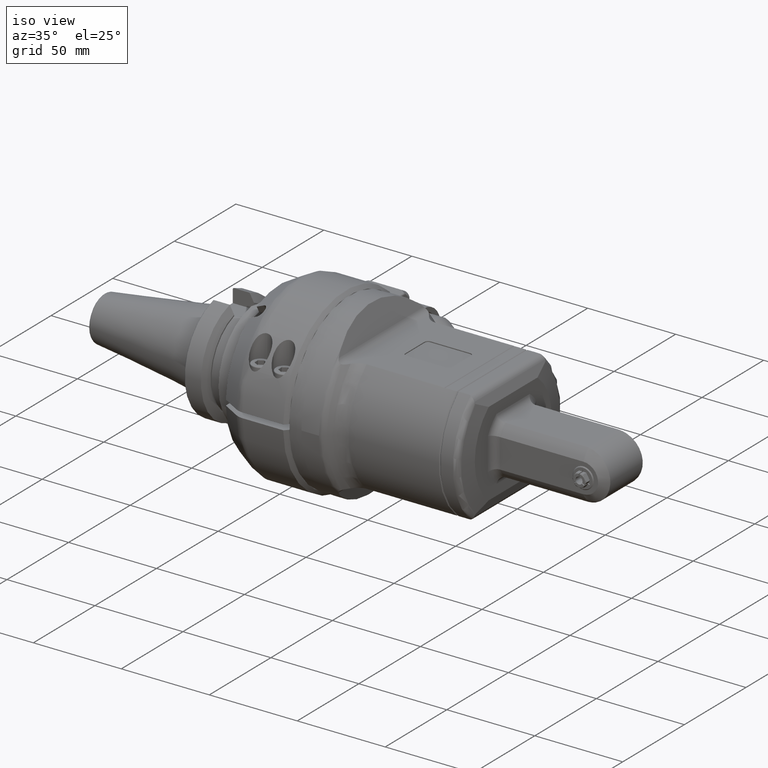
[diagram: clean part render]
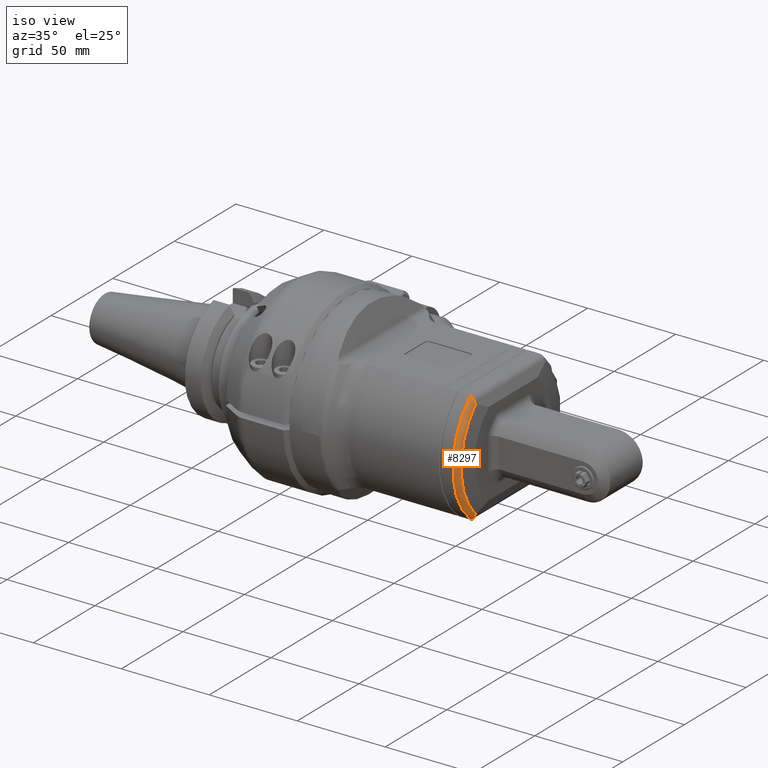
[diagram: same view with one face highlighted and labeled with its STEP entity id]
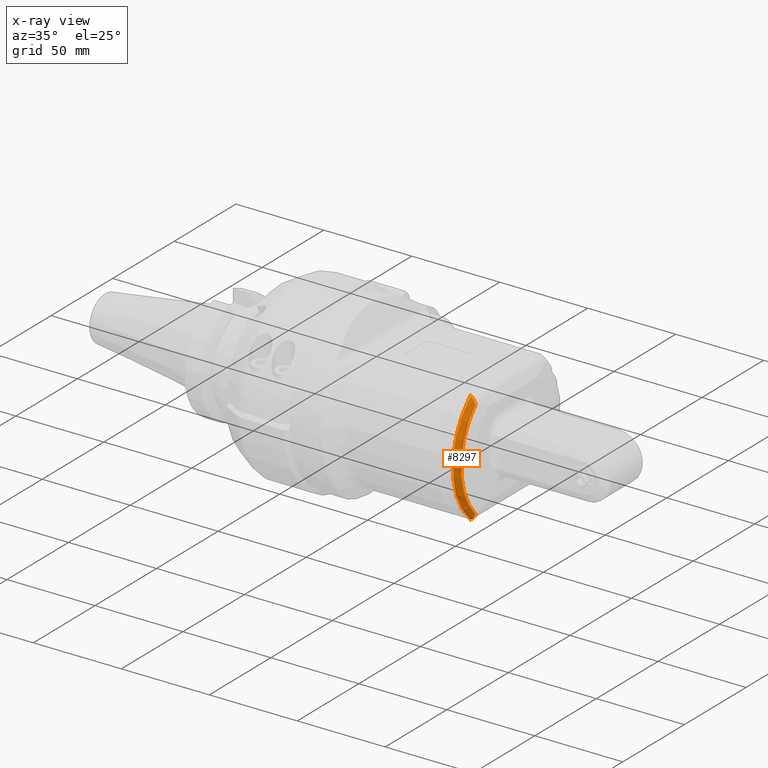
[diagram: x-ray of the same camera — body ghosted, the highlighted face saturated]
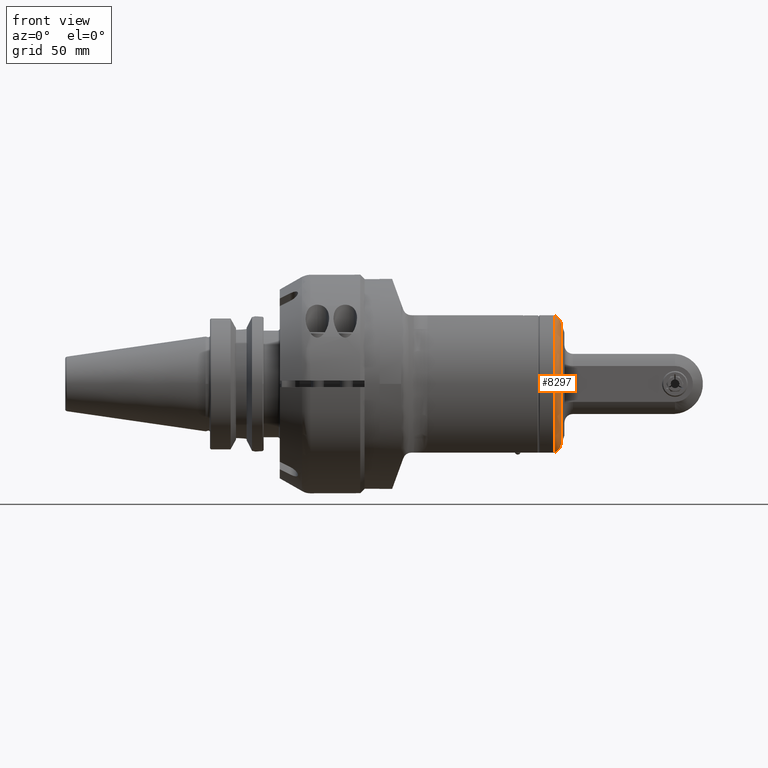
[diagram: same view with one face highlighted and labeled with its STEP entity id]
A machine part, iso view. The second image highlights one B-rep face of the part: STEP entity #8297.
The next image is the same camera in x-ray: the body ghosted, the highlighted face saturated — about 0% of this face is hidden behind the body in this view.
A second angle (front view) of the same face is appended — the face is thin or edge-on in the first view.
In plain terms, the highlighted toroidal blend (fillet) surface has major radius 39.5 mm and minor (blend) radius 3 mm.
Its self-contained STEP definition (entity closure, byte-faithful):
#81=TOROIDAL_SURFACE('',#9114,1.55511811023622,0.118110236220472);
#957=FACE_OUTER_BOUND('',#1498,.T.);
#1498=EDGE_LOOP('',(#7124,#7125,#7126,#7127,#7128,#7129));
#1913=CIRCLE('',#9113,1.57562773751968);
#1914=CIRCLE('',#9115,1.67322834645669);
#2122=B_SPLINE_CURVE_WITH_KNOTS('',3,(#44667,#44668,#44669,#44670,#44671,
#44672,#44673,#44674),.UNSPECIFIED.,.F.,.F.,(4,2,2,4),(9.26191010346924,
9.31356573542009,9.35321110246113,9.38238410772414),.UNSPECIFIED.);
#2124=B_SPLINE_CURVE_WITH_KNOTS('',3,(#44697,#44698,#44699,#44700,#44701,
#44702,#44703,#44704),.UNSPECIFIED.,.F.,.F.,(4,2,2,4),(-9.38238410773317,
-9.35321110246778,-9.31356573542668,-9.26191010346196),.UNSPECIFIED.);
#2125=B_SPLINE_CURVE_WITH_KNOTS('',3,(#44706,#44707,#44708,#44709,#44710,
#44711,#44712,#44713,#44714,#44715),.UNSPECIFIED.,.F.,.F.,(4,2,2,2,4),(4.83732677403257,
4.90122347208719,5.05059715183037,5.1425617441846,5.23157631612741),
 .UNSPECIFIED.);
#2126=B_SPLINE_CURVE_WITH_KNOTS('',3,(#44718,#44719,#44720,#44721,#44722,
#44723,#44724,#44725,#44726,#44727),.UNSPECIFIED.,.F.,.F.,(4,2,2,2,4),(3.13444354131986,
3.19139764599685,3.33701634573695,3.50794324143168,3.52444521728082),
 .UNSPECIFIED.);
#3907=VERTEX_POINT('',#44662);
#3908=VERTEX_POINT('',#44666);
#3911=VERTEX_POINT('',#44690);
#3912=VERTEX_POINT('',#44696);
#3913=VERTEX_POINT('',#44705);
#3914=VERTEX_POINT('',#44716);
#5017=EDGE_CURVE('',#3908,#3907,#2122,.T.);
#5021=EDGE_CURVE('',#3907,#3911,#1913,.T.);
#5023=EDGE_CURVE('',#3911,#3912,#2124,.T.);
#5024=EDGE_CURVE('',#3912,#3913,#2125,.T.);
#5025=EDGE_CURVE('',#3913,#3914,#1914,.T.);
#5026=EDGE_CURVE('',#3914,#3908,#2126,.T.);
#7124=ORIENTED_EDGE('',*,*,#5021,.T.);
#7125=ORIENTED_EDGE('',*,*,#5023,.T.);
#7126=ORIENTED_EDGE('',*,*,#5024,.T.);
#7127=ORIENTED_EDGE('',*,*,#5025,.T.);
#7128=ORIENTED_EDGE('',*,*,#5026,.T.);
#7129=ORIENTED_EDGE('',*,*,#5017,.T.);
#8297=ADVANCED_FACE('',(#957),#81,.T.);
#9113=AXIS2_PLACEMENT_3D('',#44691,#11005,#11006);
#9114=AXIS2_PLACEMENT_3D('',#44695,#11007,#11008);
#9115=AXIS2_PLACEMENT_3D('',#44717,#11009,#11010);
#11005=DIRECTION('center_axis',(-1.,0.,0.));
#11006=DIRECTION('ref_axis',(0.,-1.,0.));
#11007=DIRECTION('center_axis',(-1.,0.,0.));
#11008=DIRECTION('ref_axis',(0.,-1.,8.30324357739702E-13));
#11009=DIRECTION('center_axis',(1.,0.,0.));
#11010=DIRECTION('ref_axis',(0.,-0.662945325591095,0.748667813704394));
#44662=CARTESIAN_POINT('',(3.12744584116181,-1.1139411052378,-1.11433297595591));
#44666=CARTESIAN_POINT('',(3.11219887617598,-1.12931745045709,-1.15622365701339));
#44667=CARTESIAN_POINT('Ctrl Pts',(3.11219887617472,-1.12931745045828,-1.15622365701312));
#44668=CARTESIAN_POINT('Ctrl Pts',(3.11462158912986,-1.13039840433352,-1.14956730961658));
#44669=CARTESIAN_POINT('Ctrl Pts',(3.11730585496397,-1.13067278602585,-1.14219235177914));
#44670=CARTESIAN_POINT('Ctrl Pts',(3.12133908896636,-1.12855094725206,-1.13111113532943));
#44671=CARTESIAN_POINT('Ctrl Pts',(3.12333238565486,-1.12631176780595,-1.12563459912039));
#44672=CARTESIAN_POINT('Ctrl Pts',(3.12578751149948,-1.12083125829801,-1.11888919806522));
#44673=CARTESIAN_POINT('Ctrl Pts',(3.1267756123666,-1.11747547052977,-1.11617441395495));
#44674=CARTESIAN_POINT('Ctrl Pts',(3.12744584116167,-1.1139411052375,-1.11433297595642));
#44690=CARTESIAN_POINT('',(3.12744584116181,-1.1139411052374,1.11433297595512));
#44691=CARTESIAN_POINT('Origin',(3.12744584116181,0.,0.));
#44695=CARTESIAN_POINT('Origin',(3.01112996482165,0.,0.));
#44696=CARTESIAN_POINT('',(3.11219887617402,-1.12931745045669,1.15622365701811));
#44697=CARTESIAN_POINT('Ctrl Pts',(3.12744584116183,-1.1139411052373,1.11433297595533));
#44698=CARTESIAN_POINT('Ctrl Pts',(3.12677561236675,-1.11747547052987,1.11617441395389));
#44699=CARTESIAN_POINT('Ctrl Pts',(3.12578751149956,-1.12083125829848,1.11888919806435));
#44700=CARTESIAN_POINT('Ctrl Pts',(3.12333238565485,-1.12631176780661,1.12563459911977));
#44701=CARTESIAN_POINT('Ctrl Pts',(3.12133908896636,-1.12855094725272,1.13111113532881));
#44702=CARTESIAN_POINT('Ctrl Pts',(3.11730585496334,-1.13067278602683,1.14219235178021));
#44703=CARTESIAN_POINT('Ctrl Pts',(3.11462158912841,-1.13039840433396,1.14956730961993));
#44704=CARTESIAN_POINT('Ctrl Pts',(3.11219887617275,-1.12931745045807,1.15622365701787));
#44705=CARTESIAN_POINT('',(3.01112996481457,-1.10925891092795,1.25269220797205));
#44706=CARTESIAN_POINT('Ctrl Pts',(3.11219887617286,-1.12931745045781,1.15622365701787));
#44707=CARTESIAN_POINT('Ctrl Pts',(3.10992150202596,-1.12830134311437,1.16248068943087));
#44708=CARTESIAN_POINT('Ctrl Pts',(3.10714808097575,-1.12761071192088,1.16886566364079));
#44709=CARTESIAN_POINT('Ctrl Pts',(3.09597212534335,-1.12573402329923,1.1902606591916));
#44710=CARTESIAN_POINT('Ctrl Pts',(3.08515405927657,-1.12511134913007,1.20508693034976));
#44711=CARTESIAN_POINT('Ctrl Pts',(3.06202506788637,-1.1220243338031,1.226365512853));
#44712=CARTESIAN_POINT('Ctrl Pts',(3.05236776983049,-1.12042535664588,1.23339537790917));
#44713=CARTESIAN_POINT('Ctrl Pts',(3.03209735474745,-1.1158611191143,1.24492339608874));
#44714=CARTESIAN_POINT('Ctrl Pts',(3.02169917132121,-1.11298379053951,1.24939382719235));
#44715=CARTESIAN_POINT('Ctrl Pts',(3.01112996482165,-1.10925891092993,1.25269220796999));
#44716=CARTESIAN_POINT('',(3.01112996482165,-1.10925891092992,-1.25269220797008));
#44717=CARTESIAN_POINT('Origin',(3.01112996482165,0.,0.));
#44718=CARTESIAN_POINT('Ctrl Pts',(3.01112996482163,-1.10925891092992,-1.25269220797));
#44719=CARTESIAN_POINT('Ctrl Pts',(3.01771591762827,-1.11157998217781,-1.25063689945268));
#44720=CARTESIAN_POINT('Ctrl Pts',(3.02430755807479,-1.11359574986978,-1.24810503051286));
#44721=CARTESIAN_POINT('Ctrl Pts',(3.0475346661872,-1.11981029969304,-1.23726055543078));
#44722=CARTESIAN_POINT('Ctrl Pts',(3.06310556150513,-1.12231642741135,-1.22642683586684));
#44723=CARTESIAN_POINT('Ctrl Pts',(3.09244260423587,-1.12582012191214,-1.19653933638402));
#44724=CARTESIAN_POINT('Ctrl Pts',(3.10333370494514,-1.12623802115735,-1.17846069840586));
#44725=CARTESIAN_POINT('Ctrl Pts',(3.11094556688809,-1.12879785859389,-1.15957789756851));
#44726=CARTESIAN_POINT('Ctrl Pts',(3.11158698185077,-1.12904443852645,-1.15790482241279));
#44727=CARTESIAN_POINT('Ctrl Pts',(3.11219887617459,-1.12931745045858,-1.15622365701312));